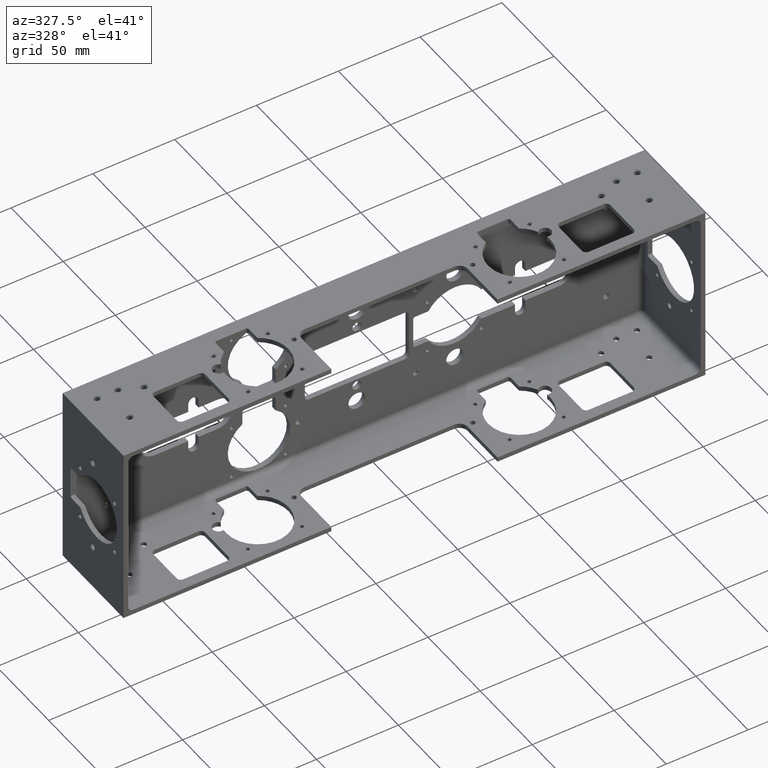
[diagram: clean part render]
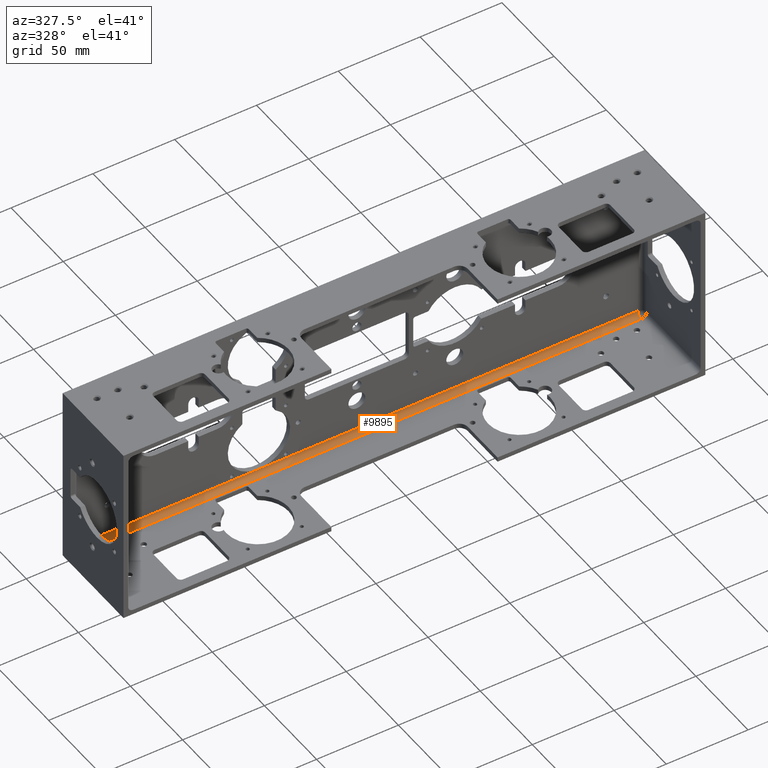
[diagram: same view with one face highlighted and labeled with its STEP entity id]
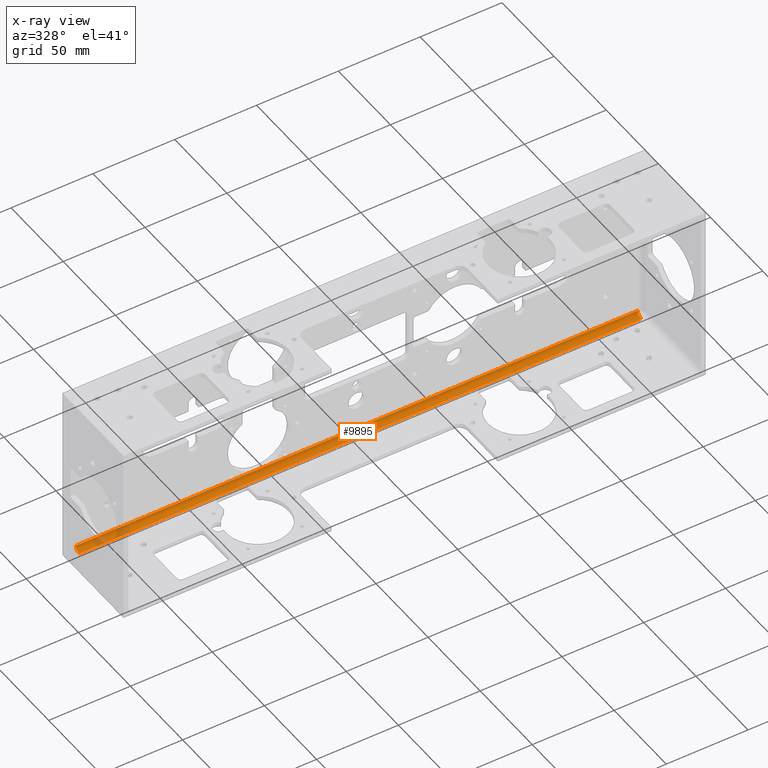
[diagram: x-ray of the same camera — body ghosted, the highlighted face saturated]
A machine part, auxiliary view. The second image highlights one B-rep face of the part: STEP entity #9895.
The next image is the same camera in x-ray: the body ghosted, the highlighted face saturated — about 4% of this face is hidden behind the body in this view.
In plain terms, the highlighted cylindrical surface (edge-blend (fillet) strip) has radius 3.175 mm, axis along (-1, 0, 0).
Its self-contained STEP definition (entity closure, byte-faithful):
#1032 = ORIENTED_EDGE ( 'NONE', *, *, #7363, .T. ) ;
#1328 = ORIENTED_EDGE ( 'NONE', *, *, #7120, .F. ) ;
#1610 = ORIENTED_EDGE ( 'NONE', *, *, #13899, .F. ) ;
#1618 = ORIENTED_EDGE ( 'NONE', *, *, #7192, .F. ) ;
#1829 = CARTESIAN_POINT ( 'NONE',  ( -6.762000000000000500, -0.2500000000000000600, -2.067000000000000200 ) ) ;
#2140 = DIRECTION ( 'NONE',  ( -1.000000000000000000, -0.0000000000000000000, -0.0000000000000000000 ) ) ;
#2645 = CARTESIAN_POINT ( 'NONE',  ( -6.887000000000000500, -0.2500000000000000600, -2.067000000000000200 ) ) ;
#3898 = VECTOR ( 'NONE', #2140, 39.37007874015748100 ) ;
#4120 = DIRECTION ( 'NONE',  ( 8.741913579725642300E-015, 1.000000000000000000, 0.0000000000000000000 ) ) ;
#4122 = DIRECTION ( 'NONE',  ( -1.000000000000000000, 8.741913579725642300E-015, -0.0000000000000000000 ) ) ;
#4123 = CARTESIAN_POINT ( 'NONE',  ( -6.762000000000000500, -0.2500000000000000600, -1.942000000000000200 ) ) ;
#4153 = LINE ( 'NONE', #2645, #3898 ) ;
#4423 = CARTESIAN_POINT ( 'NONE',  ( 6.887000000000000500, -0.1250000000000000300, -1.942000000000000200 ) ) ;
#4569 = DIRECTION ( 'NONE',  ( 1.000000000000000000, 0.0000000000000000000, 0.0000000000000000000 ) ) ;
#5037 = DIRECTION ( 'NONE',  ( -8.741913579725648600E-015, 0.0000000000000000000, 1.000000000000000000 ) ) ;
#5040 = DIRECTION ( 'NONE',  ( -1.000000000000000000, 0.0000000000000000000, -8.741913579725648600E-015 ) ) ;
#5042 = CARTESIAN_POINT ( 'NONE',  ( 6.761999999999998700, -0.2500000000000000600, -1.942000000000000200 ) ) ;
#5312 = EDGE_LOOP ( 'NONE', ( #1032, #1610, #1618, #1328 ) ) ;
#6469 = VERTEX_POINT ( 'NONE', #11755 ) ;
#6477 = VERTEX_POINT ( 'NONE', #12207 ) ;
#6768 = VERTEX_POINT ( 'NONE', #11729 ) ;
#7120 = EDGE_CURVE ( 'NONE', #6469, #6768, #9412, .T. ) ;
#7192 = EDGE_CURVE ( 'NONE', #6768, #6477, #9456, .T. ) ;
#7363 = EDGE_CURVE ( 'NONE', #6469, #11817, #9477, .T. ) ;
#7880 = CYLINDRICAL_SURFACE ( 'NONE', #13538, 0.1249999999999999000 ) ;
#7904 = FACE_OUTER_BOUND ( 'NONE', #5312, .T. ) ;
#9412 = LINE ( 'NONE', #4423, #9420 ) ;
#9420 = VECTOR ( 'NONE', #4569, 39.37007874015748100 ) ;
#9456 = CIRCLE ( 'NONE', #13152, 0.1249999999999999000 ) ;
#9477 = CIRCLE ( 'NONE', #14072, 0.1250000000000000000 ) ;
#9895 = ADVANCED_FACE ( 'NONE', ( #7904 ), #7880, .F. ) ;
#10781 = DIRECTION ( 'NONE',  ( -1.000000000000000000, 0.0000000000000000000, 0.0000000000000000000 ) ) ;
#10894 = CARTESIAN_POINT ( 'NONE',  ( -7.000000000000000000, -0.2500000000000000600, -1.942000000000000200 ) ) ;
#10980 = DIRECTION ( 'NONE',  ( 0.0000000000000000000, 0.0000000000000000000, 1.000000000000000000 ) ) ;
#11729 = CARTESIAN_POINT ( 'NONE',  ( 6.761999999999998700, -0.1250000000000000300, -1.942000000000000200 ) ) ;
#11755 = CARTESIAN_POINT ( 'NONE',  ( -6.761999999999999600, -0.1250000000000000300, -1.942000000000000200 ) ) ;
#11817 = VERTEX_POINT ( 'NONE', #1829 ) ;
#12207 = CARTESIAN_POINT ( 'NONE',  ( 6.761999999999999600, -0.2500000000000000600, -2.067000000000000200 ) ) ;
#13152 = AXIS2_PLACEMENT_3D ( 'NONE', #5042, #5040, #5037 ) ;
#13538 = AXIS2_PLACEMENT_3D ( 'NONE', #10894, #10781, #10980 ) ;
#13899 = EDGE_CURVE ( 'NONE', #6477, #11817, #4153, .T. ) ;
#14072 = AXIS2_PLACEMENT_3D ( 'NONE', #4123, #4122, #4120 ) ;